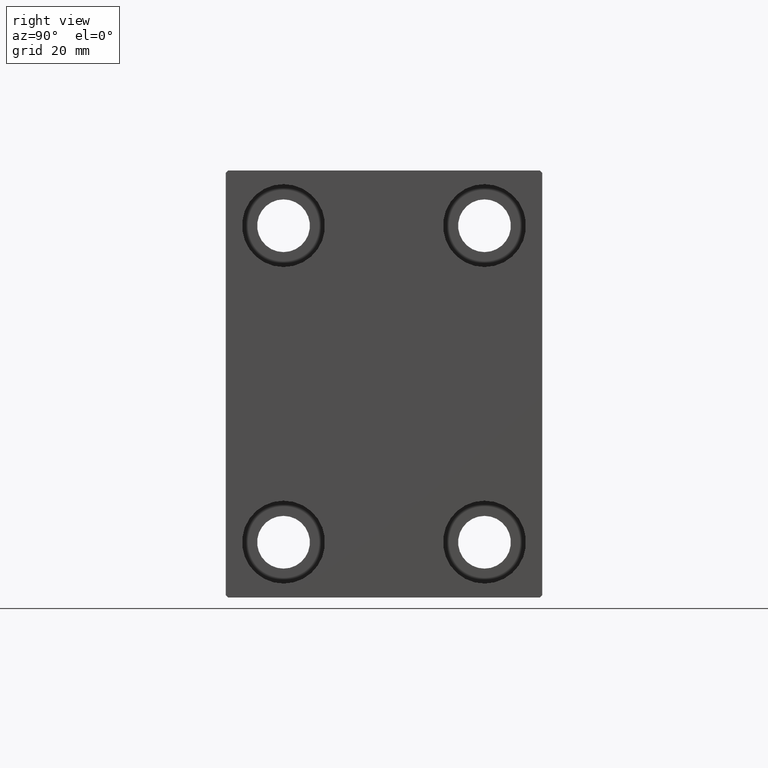
[diagram: clean part render]
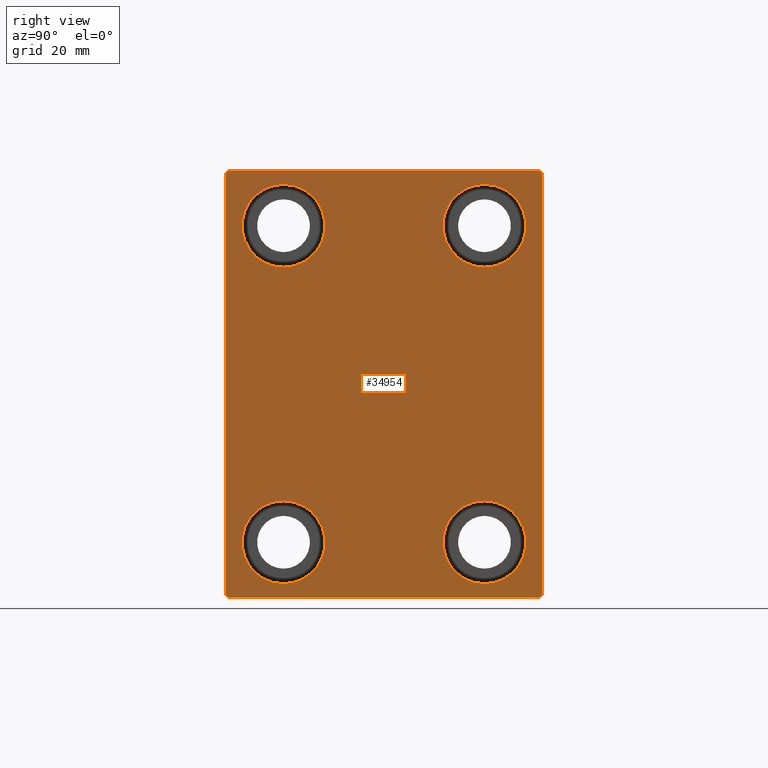
[diagram: same view with one face highlighted and labeled with its STEP entity id]
A machine part, right view. The second image highlights one B-rep face of the part: STEP entity #34954.
In plain terms, the highlighted planar face has unit normal (1, 0, 0).
Its self-contained STEP definition (entity closure, byte-faithful):
#186 = CARTESIAN_POINT ( 'NONE',  ( 88.00000000000000000, 20.00000000000000355, 39.74999999999999289 ) ) ;
#507 = DIRECTION ( 'NONE',  ( -1.000000000000000000, -0.000000000000000000, -0.000000000000000000 ) ) ;
#955 = EDGE_CURVE ( 'NONE', #22743, #11773, #19771, .T. ) ;
#992 = CARTESIAN_POINT ( 'NONE',  ( 88.00000000000000000, 36.75000000000045475, -36.74999999999943867 ) ) ;
#1440 = CARTESIAN_POINT ( 'NONE',  ( 88.00000000000000000, 31.50000000000000000, 41.99999999999999289 ) ) ;
#1891 = EDGE_CURVE ( 'NONE', #18663, #33536, #24075, .T. ) ;
#2379 = CARTESIAN_POINT ( 'NONE',  ( 88.00000000000000000, -19.99999999999999645, 23.25000000000000355 ) ) ;
#2631 = DIRECTION ( 'NONE',  ( -1.000000000000000000, -0.000000000000000000, -0.000000000000000000 ) ) ;
#2696 = CARTESIAN_POINT ( 'NONE',  ( 88.00000000000000000, -20.00000000000000355, -31.49999999999999289 ) ) ;
#2963 = VECTOR ( 'NONE', #35765, 1000.000000000000000 ) ;
#3003 = ORIENTED_EDGE ( 'NONE', *, *, #15821, .T. ) ;
#3505 = FACE_BOUND ( 'NONE', #7110, .T. ) ;
#3646 = AXIS2_PLACEMENT_3D ( 'NONE', #2696, #28466, #3793 ) ;
#3793 = DIRECTION ( 'NONE',  ( 0.000000000000000000, 0.000000000000000000, 1.000000000000000000 ) ) ;
#3826 = DIRECTION ( 'NONE',  ( -0.000000000000000000, -0.7071067811865474617, 0.7071067811865474617 ) ) ;
#4722 = VERTEX_POINT ( 'NONE', #2379 ) ;
#4831 = CARTESIAN_POINT ( 'NONE',  ( 88.00000000000000000, 31.50000000000001421, -42.50000000000000711 ) ) ;
#5013 = ORIENTED_EDGE ( 'NONE', *, *, #32440, .T. ) ;
#5020 = CARTESIAN_POINT ( 'NONE',  ( 88.00000000000000000, -20.00000000000000355, -31.49999999999999289 ) ) ;
#5843 = CIRCLE ( 'NONE', #20779, 8.250000000000000000 ) ;
#5897 = VECTOR ( 'NONE', #10058, 1000.000000000000000 ) ;
#5939 = VERTEX_POINT ( 'NONE', #19385 ) ;
#6282 = EDGE_CURVE ( 'NONE', #33536, #22364, #12634, .T. ) ;
#6973 = EDGE_CURVE ( 'NONE', #8938, #4722, #6975, .T. ) ;
#6975 = CIRCLE ( 'NONE', #26183, 8.249999999999992895 ) ;
#7068 = AXIS2_PLACEMENT_3D ( 'NONE', #18492, #21171, #38736 ) ;
#7110 = EDGE_LOOP ( 'NONE', ( #19426, #38715 ) ) ;
#7774 = LINE ( 'NONE', #35152, #28034 ) ;
#8132 = DIRECTION ( 'NONE',  ( 0.000000000000000000, 0.000000000000000000, 1.000000000000000000 ) ) ;
#8499 = DIRECTION ( 'NONE',  ( 0.000000000000000000, 0.000000000000000000, -1.000000000000000000 ) ) ;
#8603 = CIRCLE ( 'NONE', #25697, 8.250000000000000000 ) ;
#8607 = LINE ( 'NONE', #4831, #2963 ) ;
#8769 = AXIS2_PLACEMENT_3D ( 'NONE', #33979, #30216, #16645 ) ;
#8938 = VERTEX_POINT ( 'NONE', #21497 ) ;
#9223 = EDGE_CURVE ( 'NONE', #41334, #17704, #37600, .T. ) ;
#9495 = VERTEX_POINT ( 'NONE', #37815 ) ;
#10058 = DIRECTION ( 'NONE',  ( 0.000000000000000000, -0.7071067811865378028, -0.7071067811865573427 ) ) ;
#10590 = EDGE_LOOP ( 'NONE', ( #32910, #12841 ) ) ;
#11773 = VERTEX_POINT ( 'NONE', #43764 ) ;
#12053 = DIRECTION ( 'NONE',  ( 0.000000000000000000, 0.000000000000000000, 1.000000000000000000 ) ) ;
#12422 = VERTEX_POINT ( 'NONE', #43374 ) ;
#12634 = LINE ( 'NONE', #26674, #22643 ) ;
#12665 = ORIENTED_EDGE ( 'NONE', *, *, #38011, .T. ) ;
#12841 = ORIENTED_EDGE ( 'NONE', *, *, #28183, .T. ) ;
#12869 = AXIS2_PLACEMENT_3D ( 'NONE', #33122, #2631, #43789 ) ;
#13126 = LINE ( 'NONE', #26713, #34936 ) ;
#13470 = EDGE_CURVE ( 'NONE', #4722, #8938, #41254, .T. ) ;
#14827 = CARTESIAN_POINT ( 'NONE',  ( 88.00000000000000000, -36.74999999999958078, -36.75000000000059686 ) ) ;
#15306 = DIRECTION ( 'NONE',  ( 0.000000000000000000, 0.000000000000000000, 1.000000000000000000 ) ) ;
#15714 = CIRCLE ( 'NONE', #3646, 8.250000000000000000 ) ;
#15821 = EDGE_CURVE ( 'NONE', #19355, #5939, #13126, .T. ) ;
#15933 = EDGE_CURVE ( 'NONE', #41353, #18663, #8607, .T. ) ;
#16645 = DIRECTION ( 'NONE',  ( 0.000000000000000000, 0.000000000000000000, -1.000000000000000000 ) ) ;
#16882 = ORIENTED_EDGE ( 'NONE', *, *, #6973, .T. ) ;
#17144 = CIRCLE ( 'NONE', #41994, 8.249999999999992895 ) ;
#17305 = EDGE_CURVE ( 'NONE', #9495, #19799, #5843, .T. ) ;
#17412 = CARTESIAN_POINT ( 'NONE',  ( 88.00000000000000000, -19.99999999999999645, 31.50000000000000000 ) ) ;
#17474 = DIRECTION ( 'NONE',  ( -0.000000000000000000, 0.7071067811865378028, 0.7071067811865573427 ) ) ;
#17704 = VERTEX_POINT ( 'NONE', #38946 ) ;
#17902 = LINE ( 'NONE', #992, #26005 ) ;
#18492 = CARTESIAN_POINT ( 'NONE',  ( 88.00000000000000000, 20.00000000000000355, 31.50000000000000000 ) ) ;
#18532 = CARTESIAN_POINT ( 'NONE',  ( 88.00000000000000000, 19.99999999999999645, -31.49999999999999289 ) ) ;
#18663 = VERTEX_POINT ( 'NONE', #1440 ) ;
#19355 = VERTEX_POINT ( 'NONE', #26196 ) ;
#19385 = CARTESIAN_POINT ( 'NONE',  ( 88.00000000000000000, -31.50000000000000000, -42.00000000000002132 ) ) ;
#19426 = ORIENTED_EDGE ( 'NONE', *, *, #22552, .T. ) ;
#19548 = PLANE ( 'NONE',  #8769 ) ;
#19771 = CIRCLE ( 'NONE', #41107, 8.250000000000000000 ) ;
#19799 = VERTEX_POINT ( 'NONE', #23900 ) ;
#19872 = CARTESIAN_POINT ( 'NONE',  ( 88.00000000000000000, 36.74999999999999289, 36.74999999999999289 ) ) ;
#20779 = AXIS2_PLACEMENT_3D ( 'NONE', #5020, #21711, #8132 ) ;
#21171 = DIRECTION ( 'NONE',  ( -1.000000000000000000, -0.000000000000000000, -0.000000000000000000 ) ) ;
#21425 = DIRECTION ( 'NONE',  ( 0.000000000000000000, 0.000000000000000000, 1.000000000000000000 ) ) ;
#21497 = CARTESIAN_POINT ( 'NONE',  ( 88.00000000000000000, -19.99999999999999645, 39.74999999999999289 ) ) ;
#21711 = DIRECTION ( 'NONE',  ( -1.000000000000000000, -0.000000000000000000, -0.000000000000000000 ) ) ;
#21976 = CARTESIAN_POINT ( 'NONE',  ( 88.00000000000000000, 20.00000000000000355, 31.50000000000000000 ) ) ;
#22168 = LINE ( 'NONE', #14827, #27344 ) ;
#22364 = VERTEX_POINT ( 'NONE', #37579 ) ;
#22540 = LINE ( 'NONE', #36103, #5897 ) ;
#22552 = EDGE_CURVE ( 'NONE', #17704, #41334, #17144, .T. ) ;
#22643 = VECTOR ( 'NONE', #23318, 1000.000000000000000 ) ;
#22743 = VERTEX_POINT ( 'NONE', #37320 ) ;
#22831 = CARTESIAN_POINT ( 'NONE',  ( 88.00000000000000000, 31.00000000000002842, -42.50000000000000711 ) ) ;
#23318 = DIRECTION ( 'NONE',  ( 0.000000000000000000, -1.000000000000000000, -2.202823461557850341E-16 ) ) ;
#23538 = FACE_BOUND ( 'NONE', #10590, .T. ) ;
#23900 = CARTESIAN_POINT ( 'NONE',  ( 88.00000000000000000, -20.00000000000000355, -23.24999999999999289 ) ) ;
#24075 = LINE ( 'NONE', #19872, #38930 ) ;
#24222 = ORIENTED_EDGE ( 'NONE', *, *, #41569, .T. ) ;
#25453 = ORIENTED_EDGE ( 'NONE', *, *, #6282, .T. ) ;
#25697 = AXIS2_PLACEMENT_3D ( 'NONE', #35641, #38764, #12053 ) ;
#26005 = VECTOR ( 'NONE', #17474, 1000.000000000000000 ) ;
#26183 = AXIS2_PLACEMENT_3D ( 'NONE', #17412, #507, #37223 ) ;
#26196 = CARTESIAN_POINT ( 'NONE',  ( 88.00000000000000000, -31.50000000000000000, 41.99999999999999289 ) ) ;
#26238 = ORIENTED_EDGE ( 'NONE', *, *, #26449, .T. ) ;
#26449 = EDGE_CURVE ( 'NONE', #19799, #9495, #15714, .T. ) ;
#26674 = CARTESIAN_POINT ( 'NONE',  ( 88.00000000000000000, 31.50000000000000000, 42.50000000000000711 ) ) ;
#26713 = CARTESIAN_POINT ( 'NONE',  ( 88.00000000000000000, -31.50000000000000000, 42.49999999999999289 ) ) ;
#27344 = VECTOR ( 'NONE', #35733, 1000.000000000000000 ) ;
#28034 = VECTOR ( 'NONE', #42481, 1000.000000000000000 ) ;
#28183 = EDGE_CURVE ( 'NONE', #11773, #22743, #8603, .T. ) ;
#28466 = DIRECTION ( 'NONE',  ( -1.000000000000000000, -0.000000000000000000, -0.000000000000000000 ) ) ;
#28696 = EDGE_LOOP ( 'NONE', ( #40200, #16882 ) ) ;
#29397 = CARTESIAN_POINT ( 'NONE',  ( 88.00000000000000000, 30.99999999999998579, 42.50000000000000711 ) ) ;
#30216 = DIRECTION ( 'NONE',  ( 1.000000000000000000, 0.000000000000000000, 0.000000000000000000 ) ) ;
#30310 = ORIENTED_EDGE ( 'NONE', *, *, #41802, .T. ) ;
#30622 = ORIENTED_EDGE ( 'NONE', *, *, #17305, .T. ) ;
#30642 = FACE_OUTER_BOUND ( 'NONE', #36440, .T. ) ;
#32440 = EDGE_CURVE ( 'NONE', #22364, #19355, #22540, .T. ) ;
#32910 = ORIENTED_EDGE ( 'NONE', *, *, #955, .T. ) ;
#33122 = CARTESIAN_POINT ( 'NONE',  ( 88.00000000000000000, -19.99999999999999645, 31.50000000000000000 ) ) ;
#33536 = VERTEX_POINT ( 'NONE', #29397 ) ;
#33979 = CARTESIAN_POINT ( 'NONE',  ( 88.00000000000000000, 0.000000000000000000, 0.000000000000000000 ) ) ;
#34051 = EDGE_LOOP ( 'NONE', ( #30622, #26238 ) ) ;
#34936 = VECTOR ( 'NONE', #8499, 1000.000000000000000 ) ;
#34954 = ADVANCED_FACE ( 'NONE', ( #23538, #40221, #3505, #43996, #30642 ), #19548, .T. ) ;
#35152 = CARTESIAN_POINT ( 'NONE',  ( 88.00000000000000000, -31.50000000000000000, -42.50000000000000711 ) ) ;
#35641 = CARTESIAN_POINT ( 'NONE',  ( 88.00000000000000000, 19.99999999999999645, -31.49999999999999289 ) ) ;
#35733 = DIRECTION ( 'NONE',  ( -0.000000000000000000, 0.7071067811865573427, -0.7071067811865378028 ) ) ;
#35765 = DIRECTION ( 'NONE',  ( 0.000000000000000000, -1.632680918566406300E-16, 1.000000000000000000 ) ) ;
#35999 = VERTEX_POINT ( 'NONE', #22831 ) ;
#36103 = CARTESIAN_POINT ( 'NONE',  ( 88.00000000000000000, -36.75000000000044054, 36.74999999999942446 ) ) ;
#36440 = EDGE_LOOP ( 'NONE', ( #25453, #5013, #3003, #24222, #12665, #30310, #42601, #42083 ) ) ;
#37223 = DIRECTION ( 'NONE',  ( 0.000000000000000000, 0.000000000000000000, 1.000000000000000000 ) ) ;
#37320 = CARTESIAN_POINT ( 'NONE',  ( 88.00000000000000000, 19.99999999999999645, -39.74999999999999289 ) ) ;
#37333 = CARTESIAN_POINT ( 'NONE',  ( 88.00000000000000000, 31.50000000000001421, -42.00000000000000711 ) ) ;
#37579 = CARTESIAN_POINT ( 'NONE',  ( 88.00000000000000000, -31.00000000000001421, 42.49999999999999289 ) ) ;
#37600 = CIRCLE ( 'NONE', #7068, 8.249999999999992895 ) ;
#37815 = CARTESIAN_POINT ( 'NONE',  ( 88.00000000000000000, -20.00000000000000355, -39.74999999999999289 ) ) ;
#38011 = EDGE_CURVE ( 'NONE', #12422, #35999, #7774, .T. ) ;
#38715 = ORIENTED_EDGE ( 'NONE', *, *, #9223, .T. ) ;
#38736 = DIRECTION ( 'NONE',  ( 0.000000000000000000, 0.000000000000000000, 1.000000000000000000 ) ) ;
#38764 = DIRECTION ( 'NONE',  ( -1.000000000000000000, -0.000000000000000000, -0.000000000000000000 ) ) ;
#38930 = VECTOR ( 'NONE', #3826, 1000.000000000000114 ) ;
#38946 = CARTESIAN_POINT ( 'NONE',  ( 88.00000000000000000, 20.00000000000000355, 23.25000000000000355 ) ) ;
#40200 = ORIENTED_EDGE ( 'NONE', *, *, #13470, .T. ) ;
#40221 = FACE_BOUND ( 'NONE', #28696, .T. ) ;
#41107 = AXIS2_PLACEMENT_3D ( 'NONE', #18532, #41463, #21425 ) ;
#41254 = CIRCLE ( 'NONE', #12869, 8.249999999999992895 ) ;
#41334 = VERTEX_POINT ( 'NONE', #186 ) ;
#41353 = VERTEX_POINT ( 'NONE', #37333 ) ;
#41463 = DIRECTION ( 'NONE',  ( -1.000000000000000000, -0.000000000000000000, -0.000000000000000000 ) ) ;
#41569 = EDGE_CURVE ( 'NONE', #5939, #12422, #22168, .T. ) ;
#41802 = EDGE_CURVE ( 'NONE', #35999, #41353, #17902, .T. ) ;
#41994 = AXIS2_PLACEMENT_3D ( 'NONE', #21976, #42664, #15306 ) ;
#42083 = ORIENTED_EDGE ( 'NONE', *, *, #1891, .T. ) ;
#42481 = DIRECTION ( 'NONE',  ( 0.000000000000000000, 1.000000000000000000, 0.000000000000000000 ) ) ;
#42601 = ORIENTED_EDGE ( 'NONE', *, *, #15933, .T. ) ;
#42664 = DIRECTION ( 'NONE',  ( -1.000000000000000000, -0.000000000000000000, -0.000000000000000000 ) ) ;
#43374 = CARTESIAN_POINT ( 'NONE',  ( 88.00000000000000000, -31.00000000000000000, -42.50000000000000711 ) ) ;
#43764 = CARTESIAN_POINT ( 'NONE',  ( 88.00000000000000000, 19.99999999999999645, -23.24999999999999289 ) ) ;
#43789 = DIRECTION ( 'NONE',  ( 0.000000000000000000, 0.000000000000000000, 1.000000000000000000 ) ) ;
#43996 = FACE_BOUND ( 'NONE', #34051, .T. ) ;